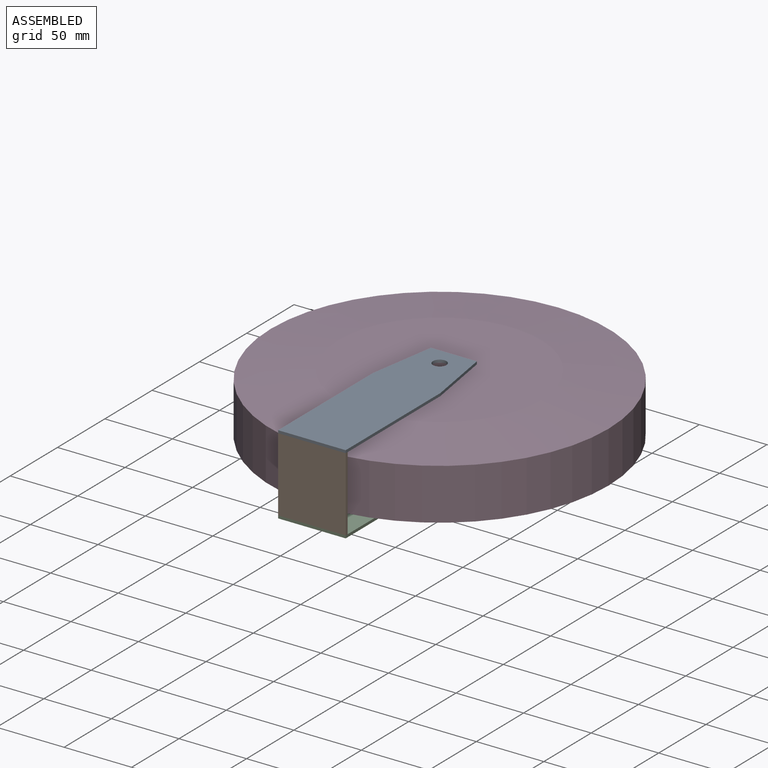
[diagram: assembled view]
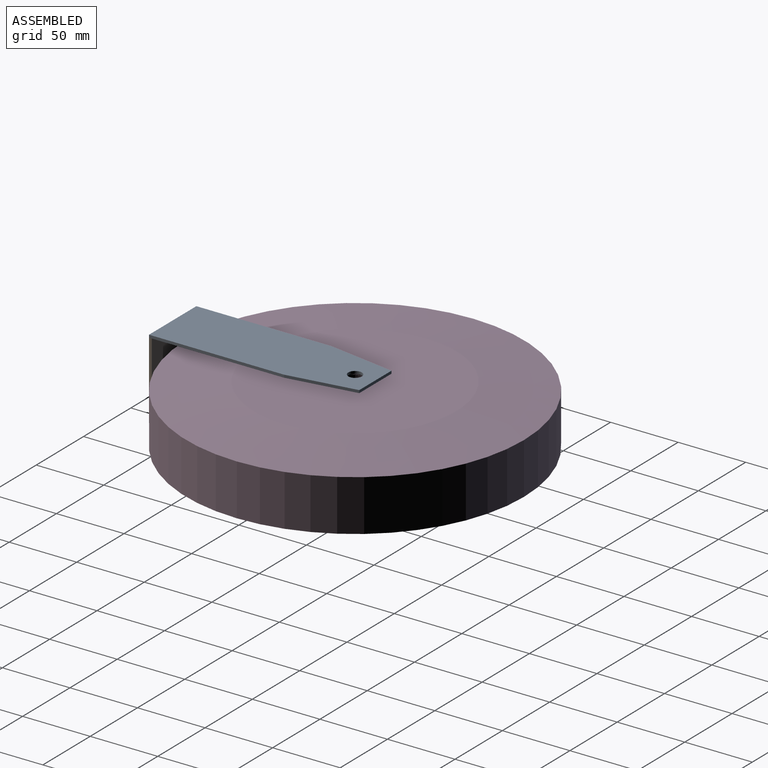
[diagram: assembled view, second angle]
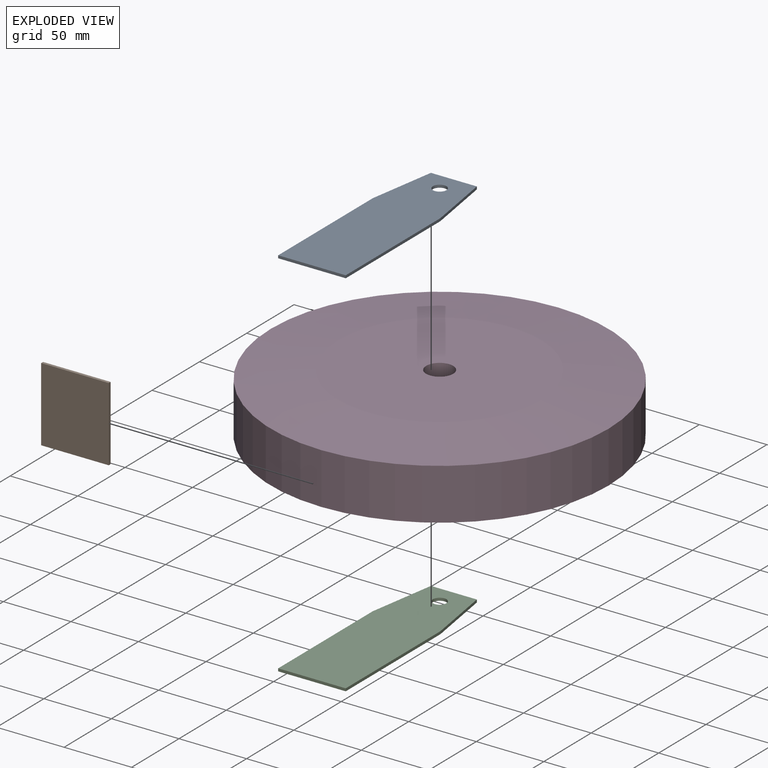
[diagram: exploded view]
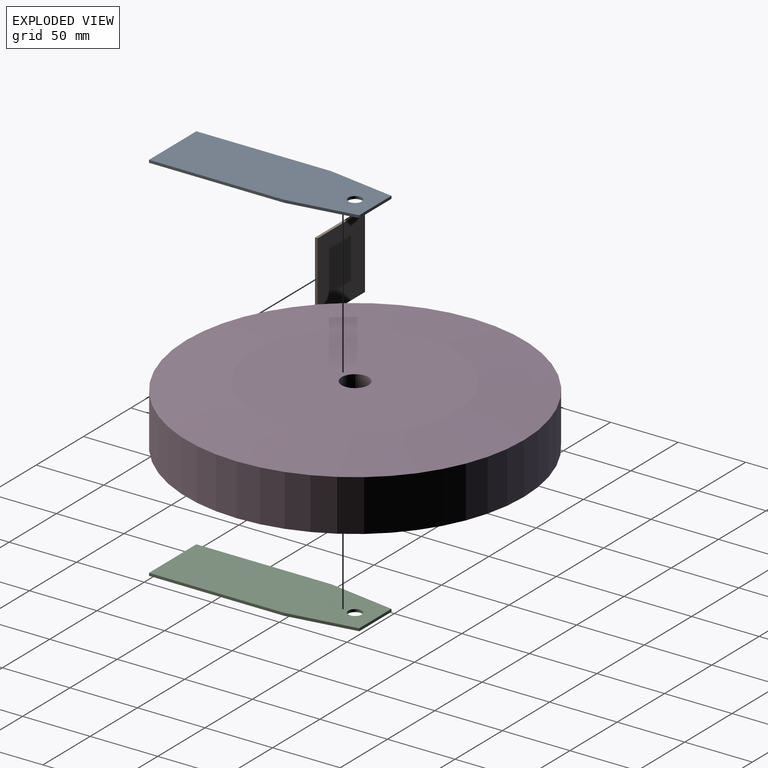
[diagram: exploded view, second angle]
ASSEMBLY  parts=4 mates=8
PART A: 9 faces, bbox 50x2x150 mm
  f0: plane 34x2mm, normal (0,0,-1), area 68mm2, adj f1,f6,f7,f8
  f1: plane 50x8mm, normal (0.99,0,-0.16), area 101.3mm2, adj f0,f2,f7,f8
  f2: plane 100x2mm, normal (1,0,0), area 200mm2, adj f1,f3,f7,f8
  f3: plane 50x2mm, normal (0,0,1), area 100mm2, adj f2,f4,f7,f8
  f4: plane 100x2mm, normal (-1,0,0), area 200mm2, adj f3,f6,f7,f8
  f5: cylinder r=5mm len=10mm, axis (0,1,0), area 62.8mm2, adj f7,f8
  f6: plane 50x8mm, normal (-0.99,0,-0.16), area 101.3mm2, adj f0,f4,f7,f8
  f7: plane 150x50mm, normal (0,-1,0), area 7021.5mm2, adj f0,f1,f2,f3,f4,f5,f6
  f8: plane 150x50mm, normal (0,1,0), area 7021.5mm2, adj f0,f1,f2,f3,f4,f5,f6
PART B: 6 faces, bbox 50x2x55 mm
  f0: plane 55x2mm, normal (-1,0,0), area 110mm2, adj f1,f3,f4,f5
  f1: plane 50x2mm, normal (0,0,-1), area 100mm2, adj f0,f2,f4,f5
  f2: plane 55x2mm, normal (1,0,0), area 110mm2, adj f1,f3,f4,f5
  f3: plane 50x2mm, normal (0,0,1), area 100mm2, adj f0,f2,f4,f5
  f4: plane 55x50mm, normal (0,-1,0), area 2750mm2, adj f0,f1,f2,f3
  f5: plane 55x50mm, normal (0,1,0), area 2750mm2, adj f0,f1,f2,f3
PART C: same geometry as A
PART D: 6 faces, bbox 50x250x250 mm
  f0: cylinder r=10mm len=50mm, axis (-1,0,0), area 3141.6mm2, adj f1,f5
  f1: plane 150x150mm, normal (-1,0,0), area 17357.3mm2, adj f0,f2
  f2: cone r=125mm half-angle=83.2deg, axis (1,0,0), area 31641.3mm2, adj f1,f3
  f3: cylinder r=125mm len=250mm, axis (-1,0,0), area 29845.1mm2, adj f2,f4
  f4: cone r=125mm half-angle=83.2deg, axis (-1,0,0), area 31641.3mm2, adj f3,f5
  f5: plane 150x150mm, normal (1,0,0), area 17357.3mm2, adj f0,f4
PLACE A rot(axis=(1,0,0),90deg) t=(-24.39,153.97,85.08)mm
PLACE B t=(-49.39,5.97,28.08)mm
PLACE C rot(axis=(1,0,0),90deg) t=(-24.39,153.97,28.08)mm
PLACE D rot(axis=(0.71,0,0.71),180deg) t=(-149.39,138.97,55.58)mm
MATE planar A.f3 <-> B.f4  axis (0,-1,0) through (-24.39,3.97,84.08)mm
MATE planar C.f8 <-> B.f1  axis (0,0,1) through (-24.39,74.98,28.08)mm
MATE planar B.f2 <-> C.f2  axis (1,0,0) through (0.61,4.97,55.58)mm
MATE planar B.f3 <-> A.f7  axis (0,0,1) through (-24.39,4.97,83.08)mm
MATE planar B.f2 <-> A.f2  axis (1,0,0) through (0.61,4.97,55.58)mm
MATE cylindrical D.f0 <-> A.f5  axis (0,0,-1) through (-24.39,138.97,80.58)mm
MATE planar B.f4 <-> C.f3  axis (0,-1,0) through (-24.39,3.97,55.58)mm
MATE parallel D.f0 <-> C.f8  axis (0,0,-1) through (-24.39,138.97,30.58)mm
